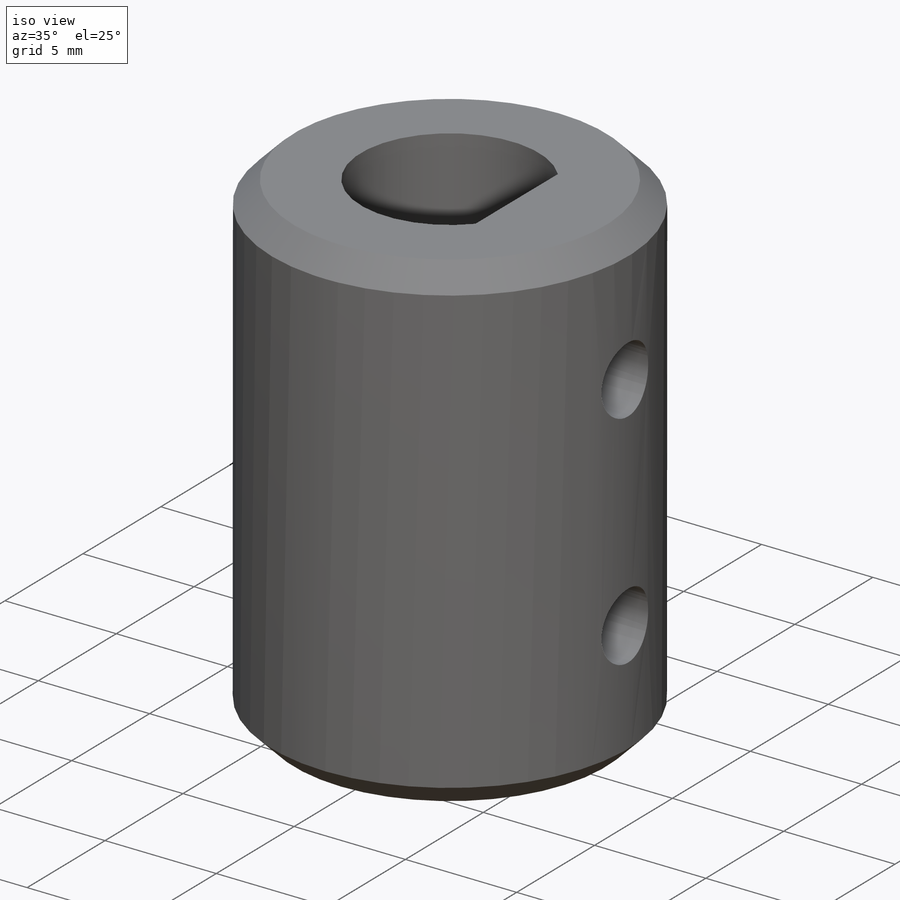
[diagram: iso view]
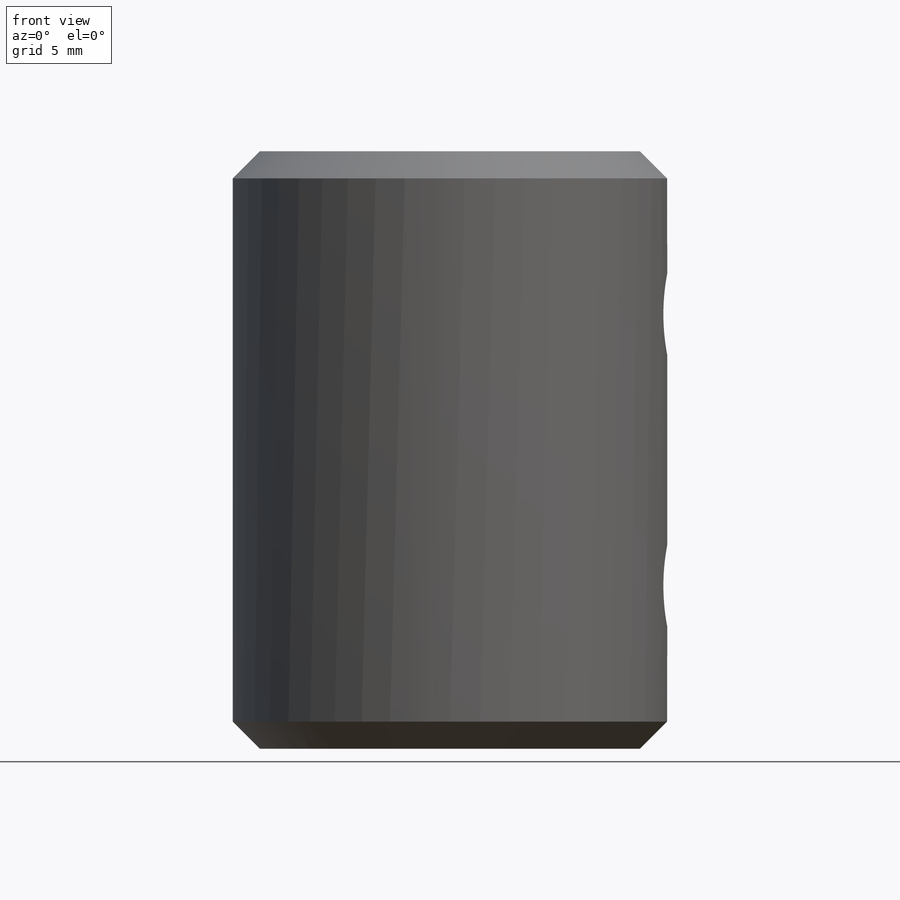
[diagram: front view]
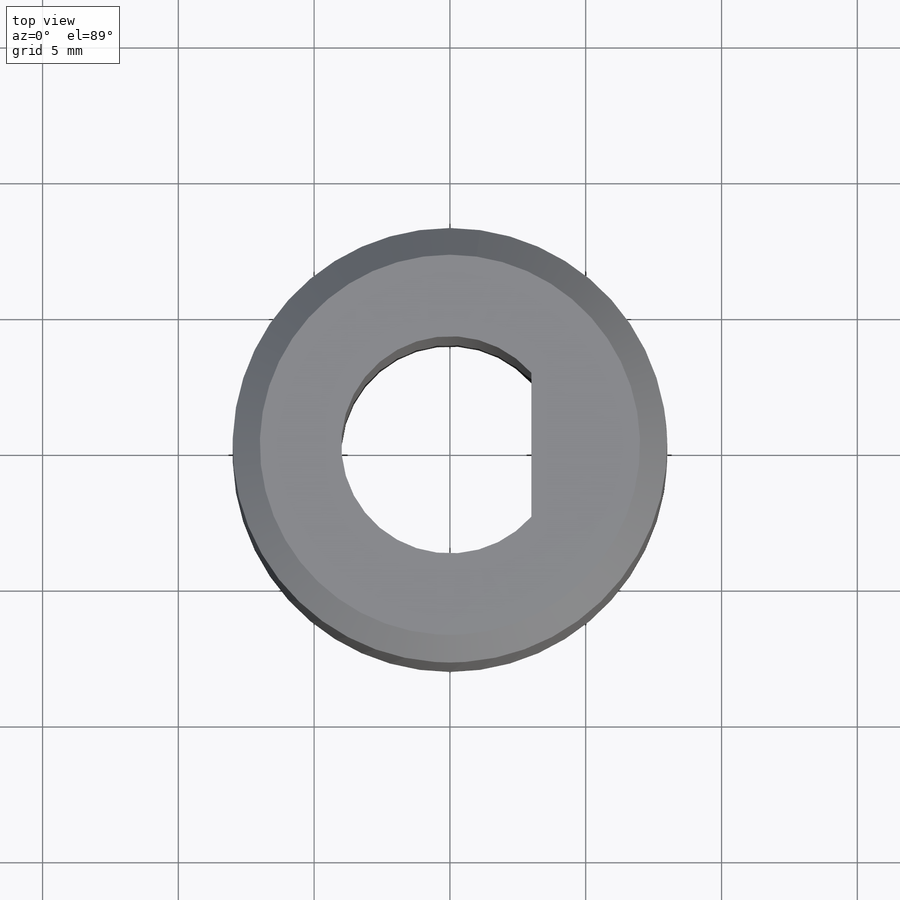
[diagram: top view]
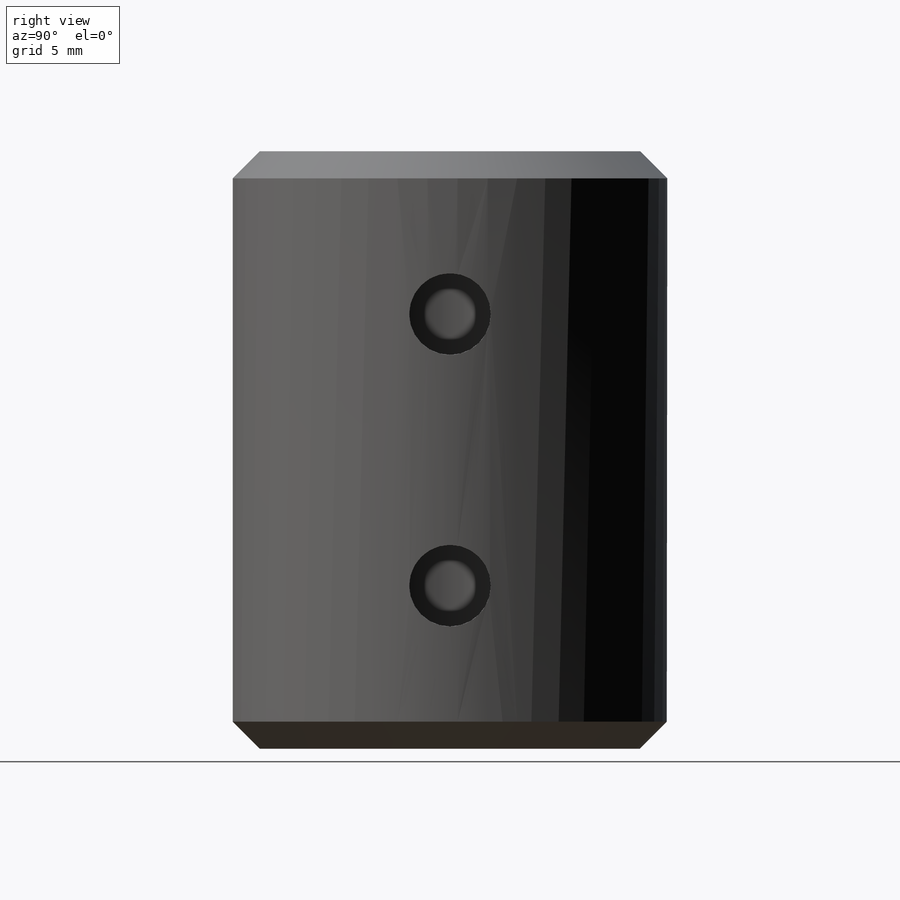
[diagram: right view]
SOLIDWORKS PART (.sldprt)
format: sldprt  version: not decoded by parser v0  size: 184,832 bytes
history: native  units: mm
features: sketch x4, cut_extrude x3, material x1, extrude x1, chamfer x1, plane x1 (+13 scaffold rows collapsed)
feature tree (24):
  scaffold x13  (default folders/planes/origin — collapsed)
  material  "Material <not specified>"
  sketch  "Sketch1"  dims[D1=16.0mm]
  extrude  "Boss-Extrude1"  Depth=22mm
  sketch  "Sketch2"  dims[D1=8.0mm D2=3.0mm]
  sketch  "Sketch3"  dims[c1.D1=8.0mm c1.D2=8.0mm c2.D2=~4.85925deg c3.D2=3.0mm]
  cut_extrude  "Cut-Extrude3"  Depth=12mm
  cut_extrude  "Cut-Extrude4"  Depth=10mm
  chamfer  "Chamfer1"  Distance=1mm Angle=45deg
  plane  "Plane1"
  sketch  "Sketch4"  dims[D2=3.0mm D1=6.0mm]
  cut_extrude  "Cut-Extrude5"  [1 undecoded]
decode coverage: 8 of 9 modeling features carry decoded parameters
note: ~ marks probable driven/reference dimensions
note: 1 parameter value undecoded
note: suppression state not decoded; provenance and decode notes live in map.json
